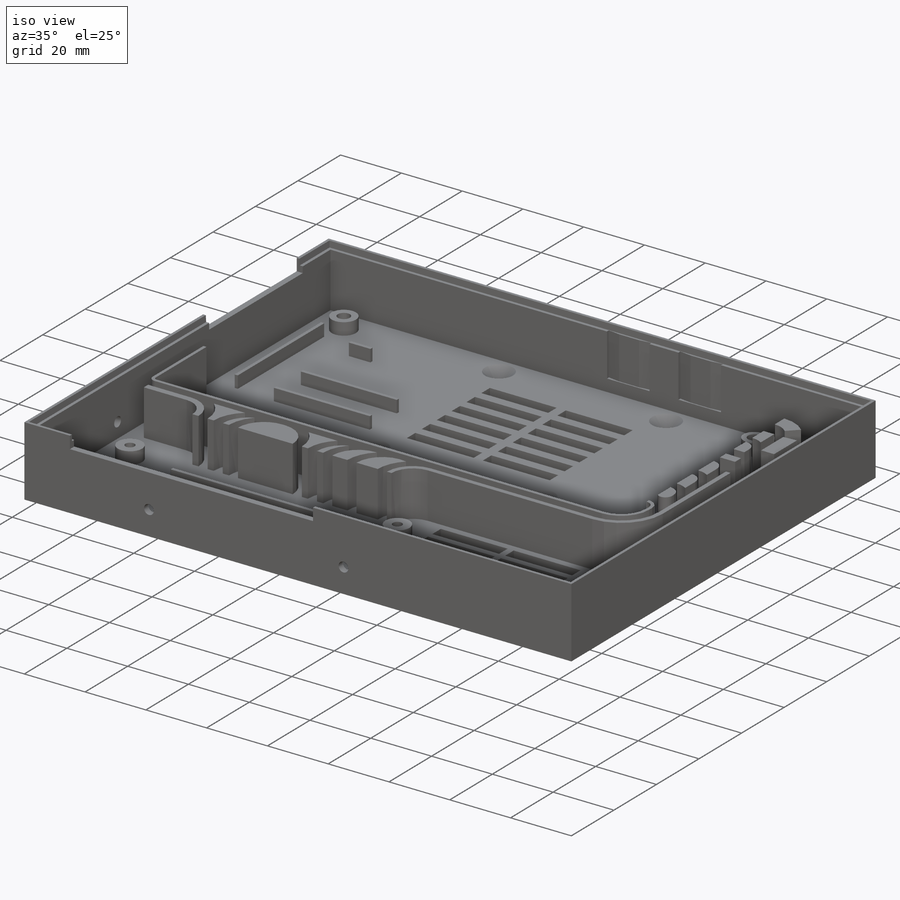
[diagram: iso view]
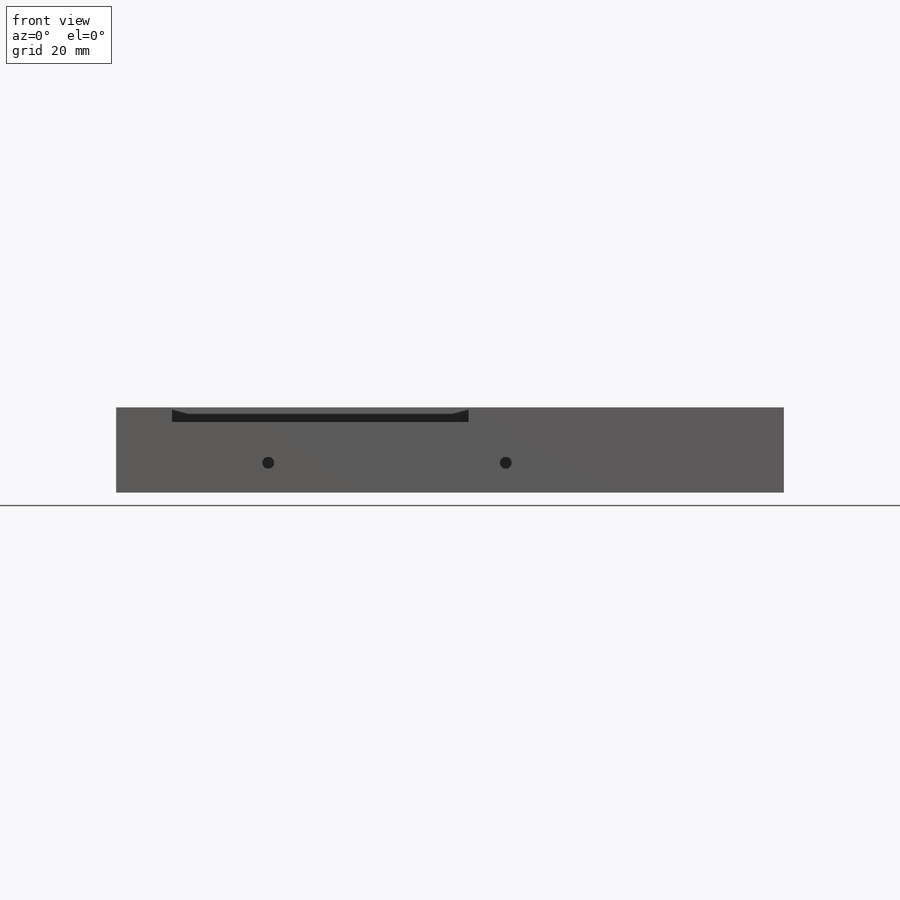
[diagram: front view]
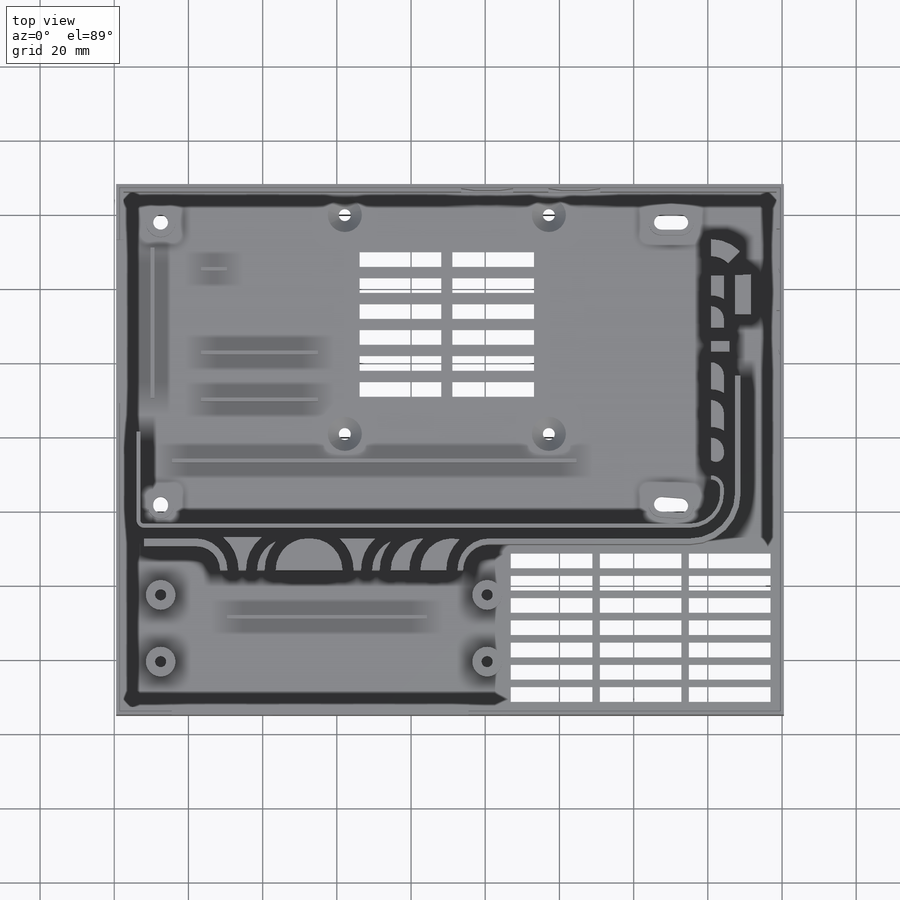
[diagram: top view]
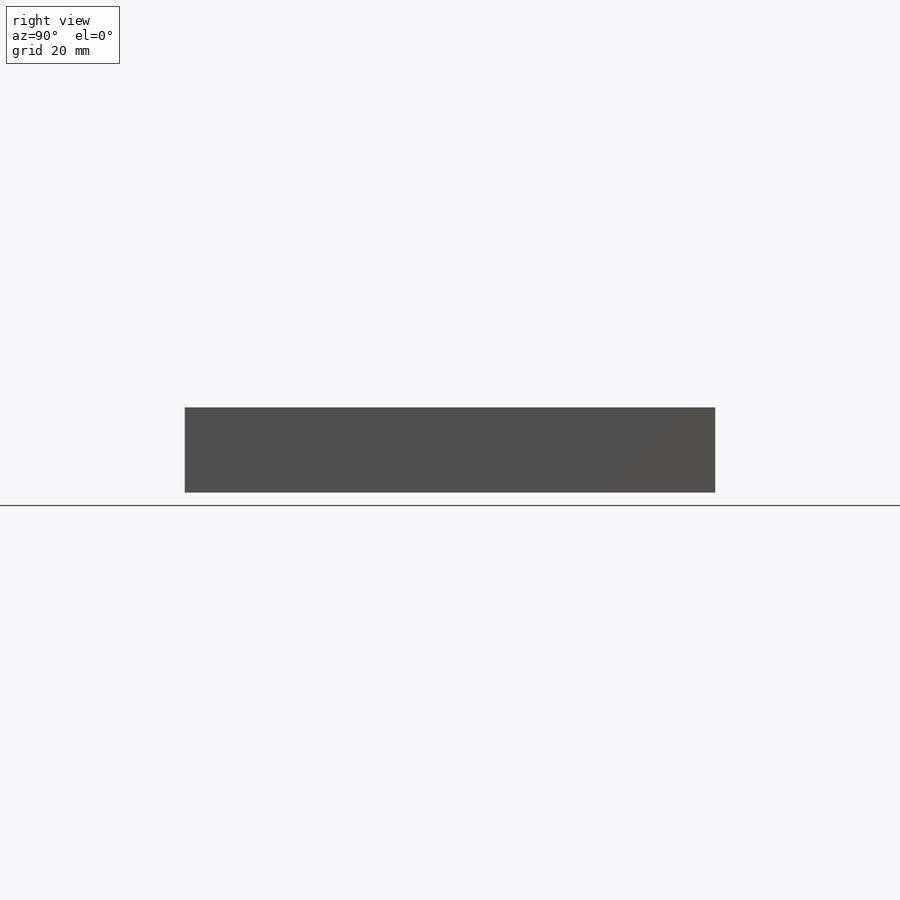
[diagram: right view]
SOLIDWORKS PART (.sldprt)
format: sldprt  version: not decoded by parser v0  size: 1,238,528 bytes
history: native  units: mm
features: sketch x13, cut_extrude x8, extrude x4, material x1, chamfer x1 (+13 scaffold rows collapsed)
feature tree (40):
  scaffold x13  (default folders/planes/origin — collapsed)
  material  "Material <not specified>"
  sketch  "Sketch1"  dims[c1.D3=4.0mm c1.D6=3.0mm c1.D1=76.0mm c1.D2=135.0mm c2.D3=~41.730188mm c2.D4=19.0mm c2.D5=88.0mm c2.D7=15.0mm c2.D2=135.0mm c2.D8=25.0mm c2.D9=95.0mm c2.D6=84.0mm c3.D7=143.0mm c3.D10=17.0mm c3.D11=95.0mm c3.D4=18.0mm c3.D5=88.0mm c4.D11=28.0mm c4.D12=33.0mm c4.D13=54.0mm c4.D14=82.0mm c4.D15=14.5mm c4.D16=10.0mm c4.D17=12.0mm c4.D18=33.0mm c4.D19=23.0mm c4.D20=59.0mm c4.D21=64.0mm c4.D22=72.0mm c4.D23=5.2mm c4.D24=4.0mm c4.D25=4.0mm c4.D26=5.2mm c4.D27=4.0mm c4.D28=4.0mm c5.D27=4.0mm c5.D28=~1.923637mm c6.D28=90.0deg c7.D28=0.4mm c7.D29=0.4mm c7.D30=180.0mm]
  sketch  "CablePath"  dims[c1.D5=4.0mm c1.D8=~51.395257mm c1.D23=10.0mm c1.D24=5.0mm c1.D25=5.0mm c1.D1=25.0mm c1.D2=2.54mm c1.D3=55.0mm c1.D4=2.54mm c2.D5=5.0mm c2.D6=5.0mm c2.D7=5.0mm c2.D8=12.0mm c2.D9=10.0mm c2.D10=30.0mm c2.D11=10.0mm c2.D12=10.0mm c2.D13=10.0mm c2.D14=5.0mm c2.D15=13.5mm c2.D16=5.0mm c2.D17=17.5mm c2.D18=~31.46236mm c3.D5=5.0mm c3.D6=3.0mm c4.D5=13.0mm c4.D8=10.16mm c4.D10=5.08mm c4.D14=4.0mm c4.D15=4.0mm c5.D10=4.0mm c5.D15=4.0mm c5.D16=5.08mm c5.D17=4.0mm c6.D15=4.0mm c6.D17=4.0mm c7.D15=10.16mm c7.D4=4.0mm c7.D16=4.0mm c7.D17=10.16mm c7.D7=~7.590997mm c7.D2=26.0mm c7.D14=~27.181994mm c7.D3=55.0mm c7.D6=3.0mm c8.D3=3.0mm c8.D6=4.0mm c8.D7=4.0mm c8.D14=4.0mm c8.D28=180.0mm c9.D3=4.0mm c9.D4=13.0mm c9.D5=10.16mm c9.D6=10.16mm c9.D7=10.16mm c9.D8=3.0mm c9.D13=15.0mm c9.D9=3.5mm c9.D23=1.5mm c9.D18=1.5mm c9.D19=1.5mm c9.D20=1.5mm c9.D21=1.5mm c9.D22=1.5mm c10.D23=1.5mm c10.D24=1.5mm c10.D25=1.5mm c10.D26=1.0mm c10.D27=1.0mm c10.D1=1.5mm c10.D10=1.5mm c10.D11=1.5mm c10.D12=1.0mm c10.D13=1.5mm c10.D14=1.0mm c10.D15=1.5mm c10.D16=2.0mm c10.D17=1.5mm c10.D18=1.5mm c10.D19=1.5mm c10.D20=1.5mm c10.D21=1.5mm c10.D22=1.5mm c11.D26=1.5mm c11.D27=1.5mm c11.D29=1.5mm c11.D30=1.5mm c11.D31=1.5mm c12.D26=1.5mm c12.D27=6.0mm c13.D26=1.5mm c13.D27=6.0mm]
  sketch  "Bottom"  dims[D1=143.0mm D2=180.0mm]
  extrude  "Boss-Bottom"  Depth=3mm
  sketch  "PCBmount"  dims[c1.D1=8.0mm c1.D2=8.0mm c1.D7=2.0mm c2.D2=9.5mm c2.D3=1.0mm c2.D5=5.0mm c2.D6=4.0mm c2.D4=1.5mm c3.D5=1.5mm c3.D4=1.5mm c3.D6=1.5mm]
  extrude  "Boss-PCBmount"  Depth=4mm
  sketch  "Sides"  dims[D1=2.0mm]
  extrude  "Boss-Sides"  Depth=18mm
  extrude  "Boss-CablePath"  Depth=18mm
  sketch  "ExtruderCables"  dims[D1=15.0mm D2=80.0mm]
  cut_extrude  "Cut-ExtruderCables"  [1 undecoded]
  sketch  "LCD"  dims[D1=15.0mm D2=59.0mm]
  cut_extrude  "Cut-LCD"  [1 undecoded]
  sketch  "USB"  dims[D1=14.0mm D2=49.5mm D3=73.0mm D4=0.9mm]
  cut_extrude  "Cut-USB"  Depth=14mm
  sketch  "24VHeatBed"  dims[c1.D1=12.0mm c1.D2=~1.100451mm c2.D2=~0.28918deg c3.D2=12.0mm c3.D3=0.9mm]
  cut_extrude  "Cut-24VHeatBed"  Depth=12mm
  sketch  "AirOut"  dims[D3=22.0mm D4=4.0mm D5=22.0mm D6=4.0mm D1=3.0 D2=7.0 D7=2.0 D8=6.0]
  cut_extrude  "Cut-AirOut"  Depth=10mm
  sketch  "ShortMountFarSide"  dims[c1.D4=3.2mm c1.D5=3.2mm c1.D1=41.0mm c1.D2=79.0mm c2.D1=41.0mm c2.D2=79.0mm c2.D3=8.0mm]
  cut_extrude  "Cut-ShortMountFarSide"  [1 undecoded]
  sketch  "LongMountLeftSide"  dims[c1.D4=3.2mm c1.D5=3.2mm c1.D1=41.0mm c1.D2=105.0mm c2.D1=41.0mm c2.D2=~1.381395mm c2.D3=105.0mm c3.D2=105.0mm c3.D3=8.0mm c3.D4=~8.486853mm]
  cut_extrude  "Cut-LongMountLeftSide"  Depth=2mm LipHeight=2mm LipWidth=1mm LipDraftAngle=3deg
  sketch  "Sketch3"  dims[D1=3.2mm D2=4.0mm D3=4.0mm D4=10.0mm D5=10.0mm]
  cut_extrude  "Cut-Extrude1"  [1 undecoded]
  chamfer  "Chamfer1"  Distance=3mm Angle=45deg
decode coverage: 22 of 26 modeling features carry decoded parameters
note: ~ marks probable driven/reference dimensions
note: 4 parameter values undecoded
summary: no parameter record found for 4 features
note: suppression state not decoded; provenance and decode notes live in map.json
